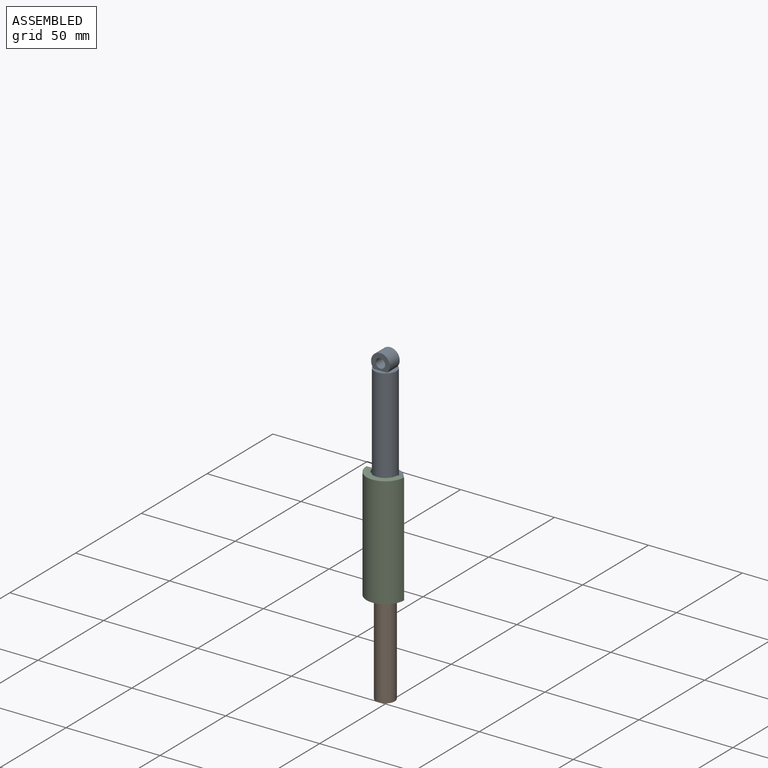
[diagram: assembled view]
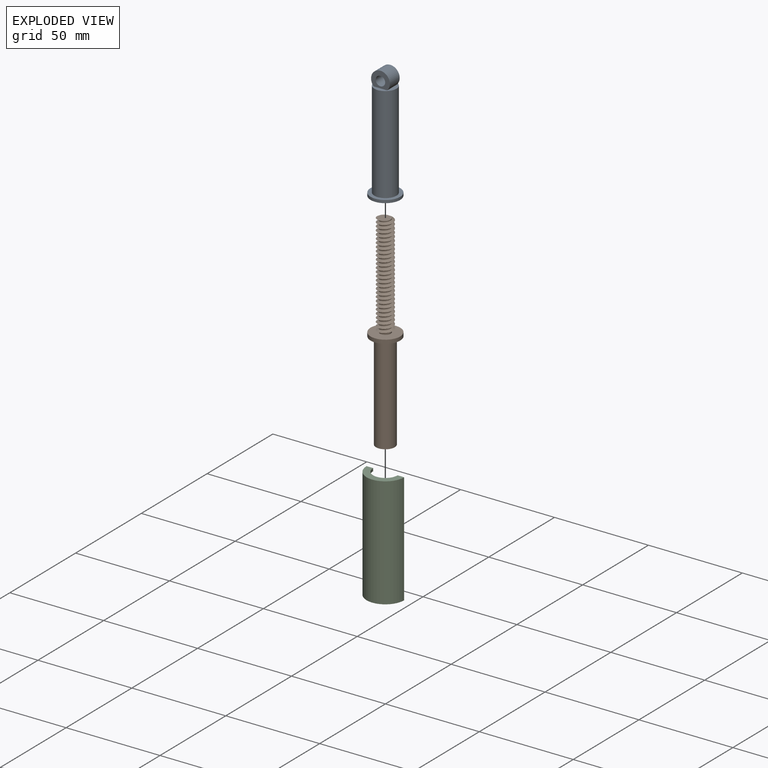
[diagram: exploded view]
GUIDED TOUR — MATED ASSEMBLY (Onshape document b60c110d519939d99d034ffd, AutoMate assembly b60c110d519939d99d034ffd_a4296d17111438adb6a21655_3076fd3152fb87a649438568_default)

This assembly has 3 components, labeled P0..P2 below (a component is one placed occurrence of a part; the same part can appear more than once), held together by 2 mates. A mate is a constraint between two components; its type names the relative motion it leaves free:
  FASTENED — locks the two components together rigidly (no relative motion),
  SLIDER — leaves translation along the listed axis free.
Axis/direction vectors are unit vectors and 'through' points are millimeter coordinates, both in the assembly's world frame.

MATES
  1. SLIDER "Slider 1": P2 <-> P0, axis (0.000, 0.000, -1.000) through (0.00, 0.00, 0.00) mm
  2. FASTENED "Fastened 2": P2 <-> P1, direction (0.000, 0.000, -1.000) through (0.00, 0.00, 0.00) mm

ASSEMBLY ORDER
  1. P2 — the base component [order verified]
  2. P1 [order verified]
  3. P0 [order verified]
(P0 verified with a relaxed clearance tolerance: the source model stores slight part interference there.)
Order-tag legend:
  [order verified] — this step's position reverses a verified removal order: the component was checked to insert without passing through the ones already placed.

Of the 3 components, 1 carries the full construction recipe — the FeatureScript program that regenerates the part's solid from scratch; the rest are supplied as boundary geometry only.
Each toured component is shown spotlighted twice — in the assembled view, then in the exploded view, where a leader line traces a displaced component back to its assembled socket (saturated green if recipe-attached, orange if geometry-only; every other component desaturated gray) — followed by its recipe or geometry summary and the mates that hold it.
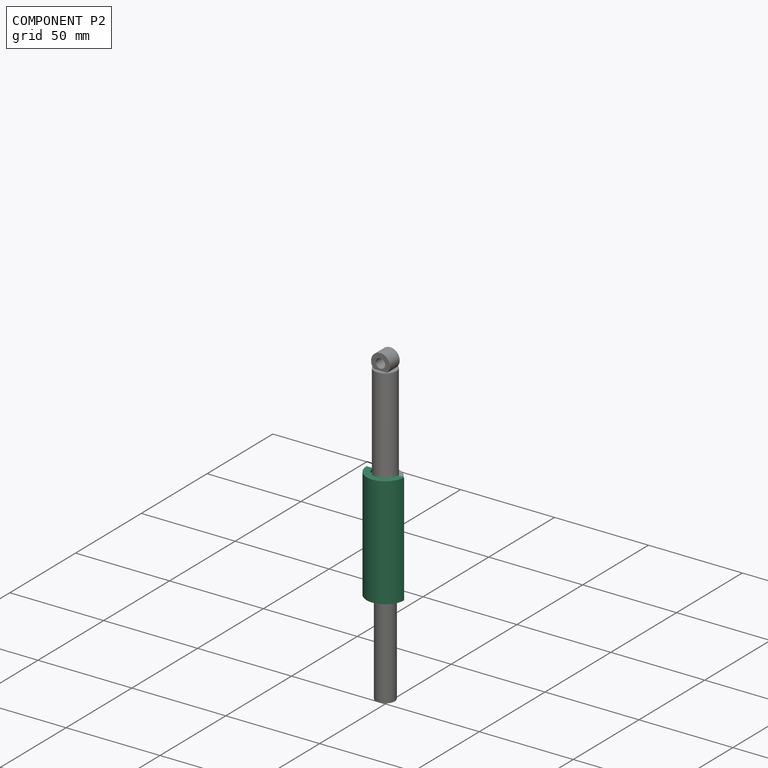
[diagram: component P2 — assembled]
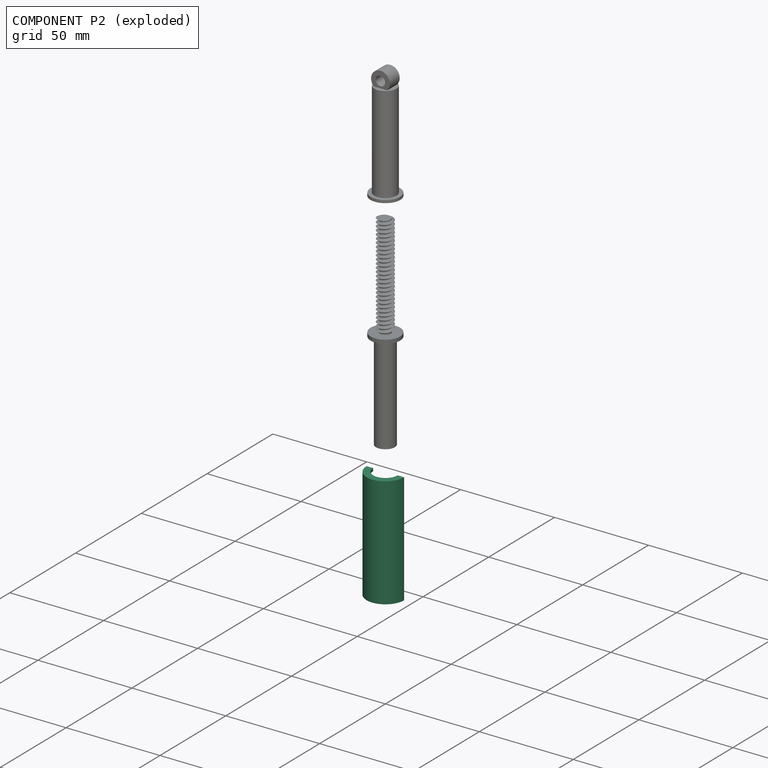
[diagram: component P2 — exploded]
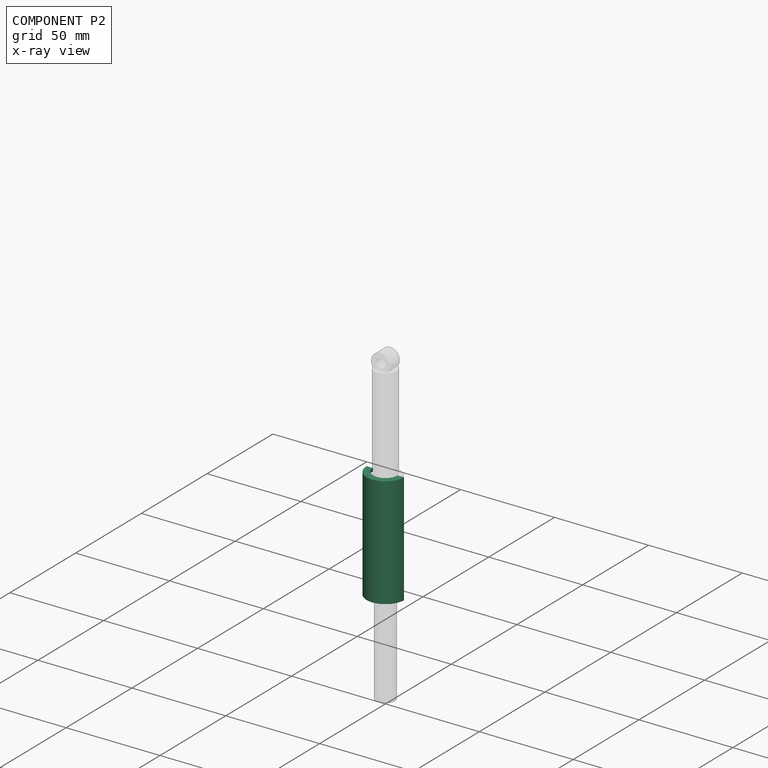
[diagram: component P2 — x-ray view]
COMPONENT P2 — recipe-attached (CADFS 00766784, mesh-verified: the recipe's output STEP matches this component's geometry to below the mesh-comparison resolution (tessellation chordal tolerance ~0.0949 mm)).
Held by: SLIDER mate "Slider 1" to P0; FASTENED mate "Fastened 2" to P1.
Construction recipe (FeatureScript — the CAD program that rebuilds this solid; sketch coordinates are in the units given by the * unit suffixes, e.g. mm):

FeatureScript 1634;
import(path : "onshape/std/geometry.fs", version : "1634.0");
import(path : "onshape/std/common.fs", version : "1634.0");
const mm = millimeter;
const VERTEX = EntityType.VERTEX;
const EDGE = EntityType.EDGE;
const FACE = EntityType.FACE;
const BODY = EntityType.BODY;
function v(x, y){return vector(x, y);}
function OD(order){return orderDisambiguation(order);}
function OSD(set){return originalSetDisambiguation(set);}
function TD(topology){return topologyDisambiguation(topology);}
function TDD(query){return trueDependencyDisambiguation(query);}
function sQuery(a, b, c) {return sketchEntityQuery(a, b, c);}

annotation { "Feature Type Name" : "Feature", "Feature Type Description" : "" }
export const myFeature = defineFeature(function(context is Context, id is Id, definition is map)
    precondition{}
    {
        {
            var Q0;
            Q0=qCreatedBy(makeId("Front.planeOp"),FACE);
            var sketch = newSketch(context, id + "F0", { "sketchPlane" : qUnion([Q0])});
            skLineSegment(sketch, "E0", {"start": v(-6.5, 59.2) * mm, "end": v(-10, 59.2) * mm});
            skLineSegment(sketch, "E1", {"start": v(-10, 59.2) * mm, "end": v(-10, 0) * mm});
            skLineSegment(sketch, "E2", {"start": v(-10, 0) * mm, "end": v(-5.6, 0) * mm});
            skLineSegment(sketch, "E3", {"start": v(-5.6, 0) * mm, "end": v(-5.6, 1.5) * mm});
            skLineSegment(sketch, "E4", {"start": v(-5.6, 1.5) * mm, "end": v(-8.5, 1.5) * mm});
            skLineSegment(sketch, "E5", {"start": v(-8.5, 1.5) * mm, "end": v(-8.5, 4.7) * mm});
            skLineSegment(sketch, "E6", {"start": v(-8.5, 4.7) * mm, "end": v(-4.7, 4.7) * mm});
            skLineSegment(sketch, "E7", {"start": v(-4.7, 4.7) * mm, "end": v(-4.7, 6.2) * mm});
            skLineSegment(sketch, "E8", {"start": v(-4.7, 6.2) * mm, "end": v(-8.5, 6.2) * mm});
            skLineSegment(sketch, "E9", {"start": v(-8.5, 6.2) * mm, "end": v(-8.5, 57.7) * mm});
            skLineSegment(sketch, "E10", {"start": v(-8.5, 57.7) * mm, "end": v(-6.5, 57.7) * mm});
            skLineSegment(sketch, "E11", {"start": v(-6.5, 57.7) * mm, "end": v(-6.5, 59.2) * mm});
            skLineSegment(sketch, "E12", {"start": v(0, 0) * mm, "end": v(0, 59.2) * mm});
            skSolve(sketch);
        }
        {
            var Q0;
            Q0=makeQuery(id+"F0.imprint","IMPRINT",FACE,{"disambiguationData":[TD([[makeQuery(id+"F0.imprint","IMPRINT",EDGE,{"derivedFrom":sQuery(id+"F0.wireOp",EDGE,"E0")}),1.0]])]});
            var Q1;
            Q1=sQuery(id+"F0.wireOp",EDGE,"E12");
            revolve(context, id + "F1", {"surfaceOperationType" : NewSurfaceOperationType.NEW, "entities" : qUnion([Q0]), "axis" : qUnion([Q1]), "revolveType" : RevolveType.ONE_DIRECTION, "angle" : 180 * degree});
        }
    });
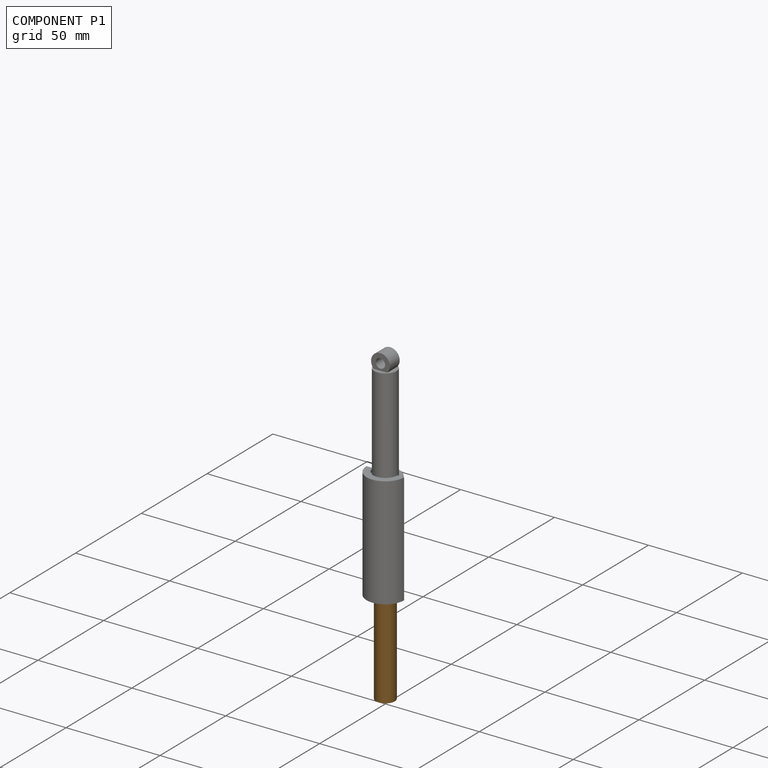
[diagram: component P1 — assembled]
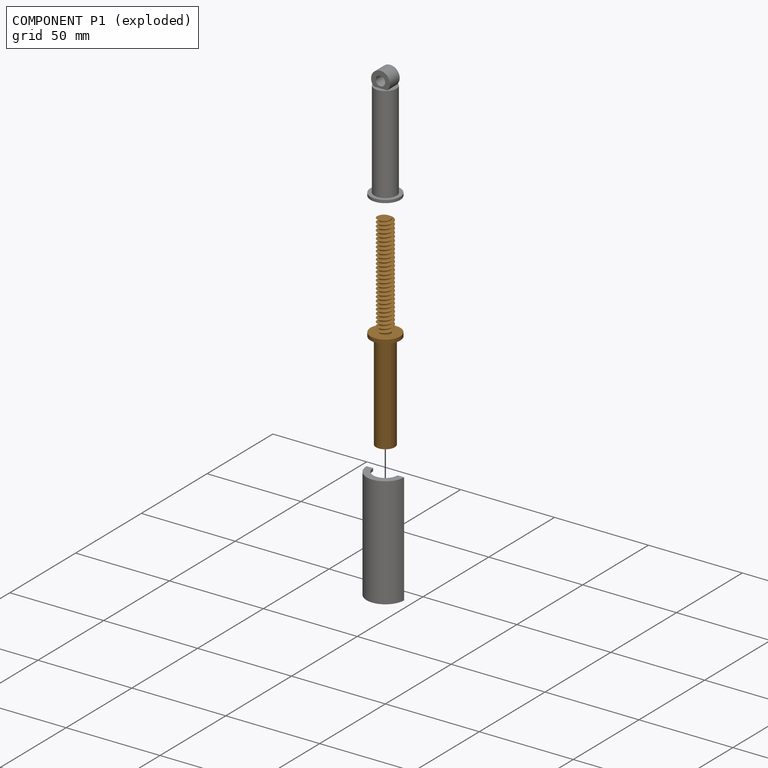
[diagram: component P1 — exploded]
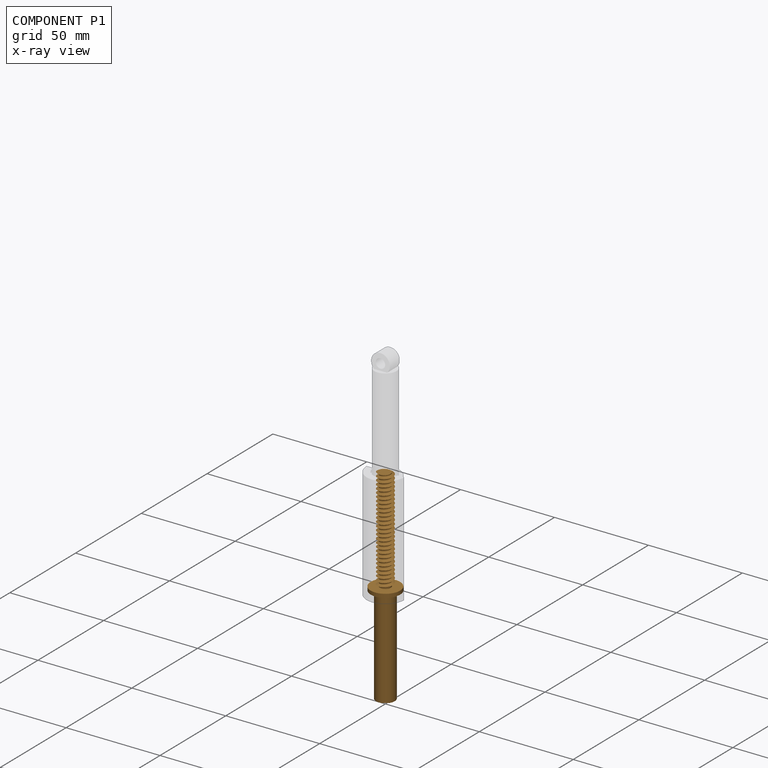
[diagram: component P1 — x-ray view]
COMPONENT P1 — geometry summary (no construction recipe available for this part):
  bounding box: 110.7 x 16.6 x 16.6 mm
  B-rep topology: 1 solid, 10 faces, 32 edges
  volume: 6590 mm^3 (22% of its bounding box)
  symmetry: revolution-symmetric about the z axis through its bounding-box center
Held by: FASTENED mate "Fastened 2" to P2.
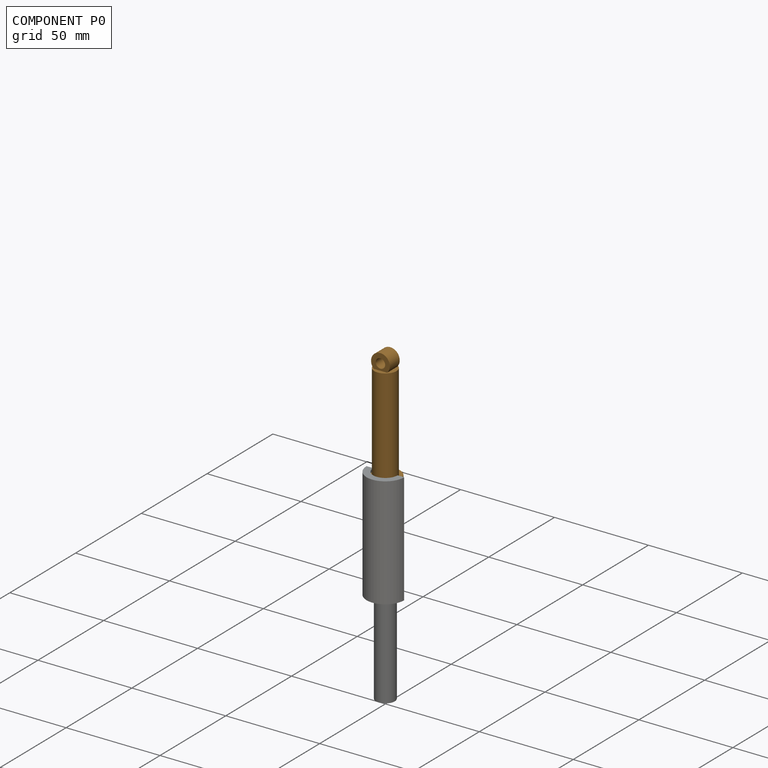
[diagram: component P0 — assembled]
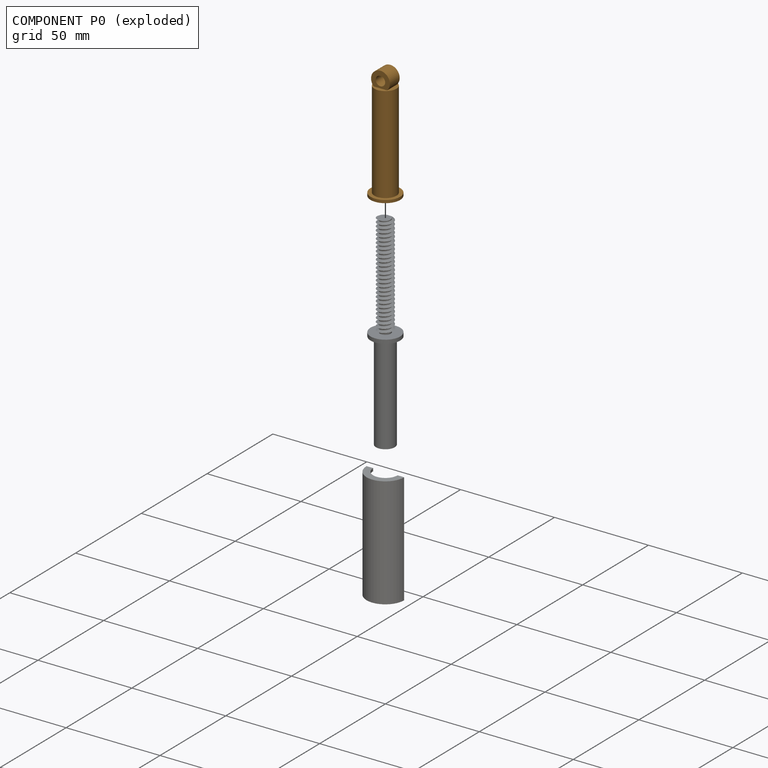
[diagram: component P0 — exploded]
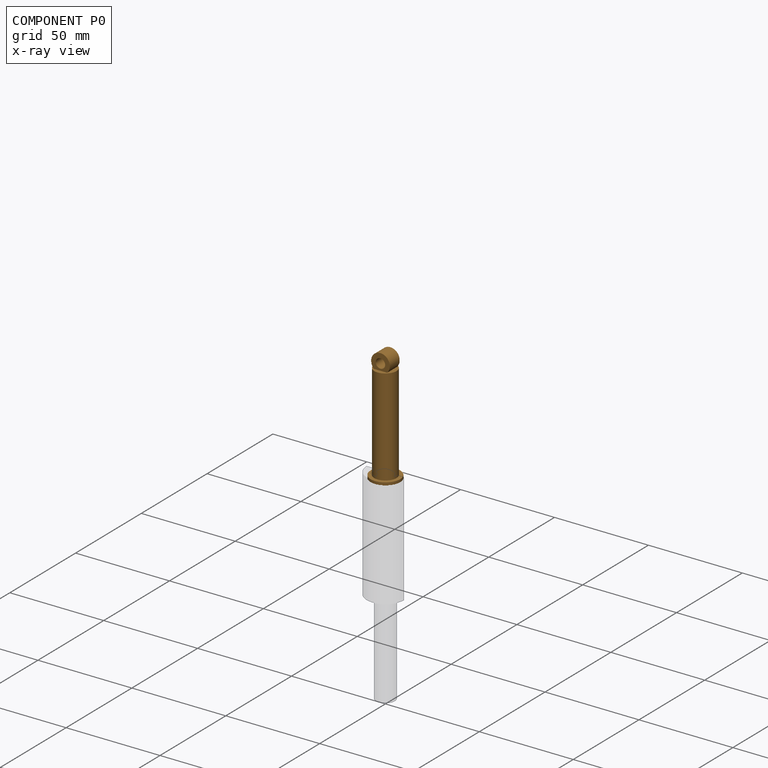
[diagram: component P0 — x-ray view]
COMPONENT P0 — geometry summary (no construction recipe available for this part):
  bounding box: 63.2 x 16.1 x 16.1 mm
  B-rep topology: 1 solid, 14 faces, 54 edges
  volume: 3889 mm^3 (24% of its bounding box)
Held by: SLIDER mate "Slider 1" to P2.
PROVENANCE & LICENSES
Assembly (occurrences, transforms, mates, per-part STEP geometry): AutoMate dataset, Zenodo record 7776208, CC0.
Construction recipes: CADFS (HuggingFace VladPyatov/CADFS, CC-BY-4.0, layered over the ABC dataset), FeatureScript reconstruction programs keyed by ABC model id.
Join: ABC meta listings map ABC model id -> Onshape documentId; within a shared document, parts are matched by geometric signature (bounding-box dims + volume at 0.1% relative tolerance, exact B-rep face/solid counts).
Verification: 1 of this assembly's 3 components carries a recipe attachment, and every attachment is mesh-verified: the CADFS STEP and the AutoMate member STEP were compared as meshes in their shared local frame (symmetric sampled-point-to-mesh distance); worst across the 1 attachment: below the mesh-comparison resolution (tessellation chordal tolerance ~0.0949 mm) on a 63 mm part.
Renders: orthographic iso camera (az 35 / el 25); the floor grid conveys scale (grid pitch printed in each image; no ruler). In the exploded view each component is displaced by its stored offset vector: the offsets alone carry the explosion direction (mate normal/axis signs are not orientation cues and do not encode it), and separation distances are assigned per mate-chain, not proportionally to assembly-order depth.
